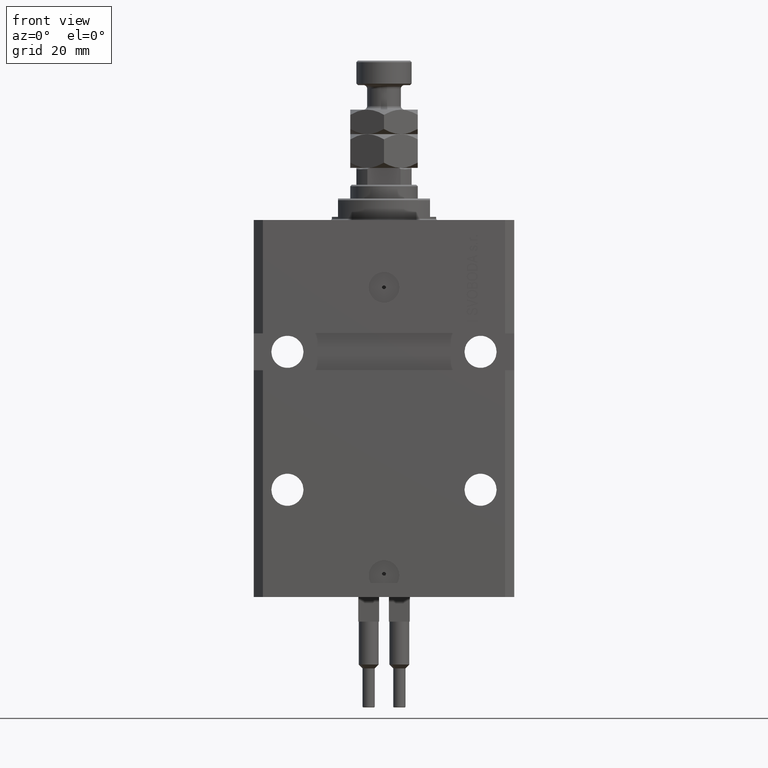
[diagram: clean part render]
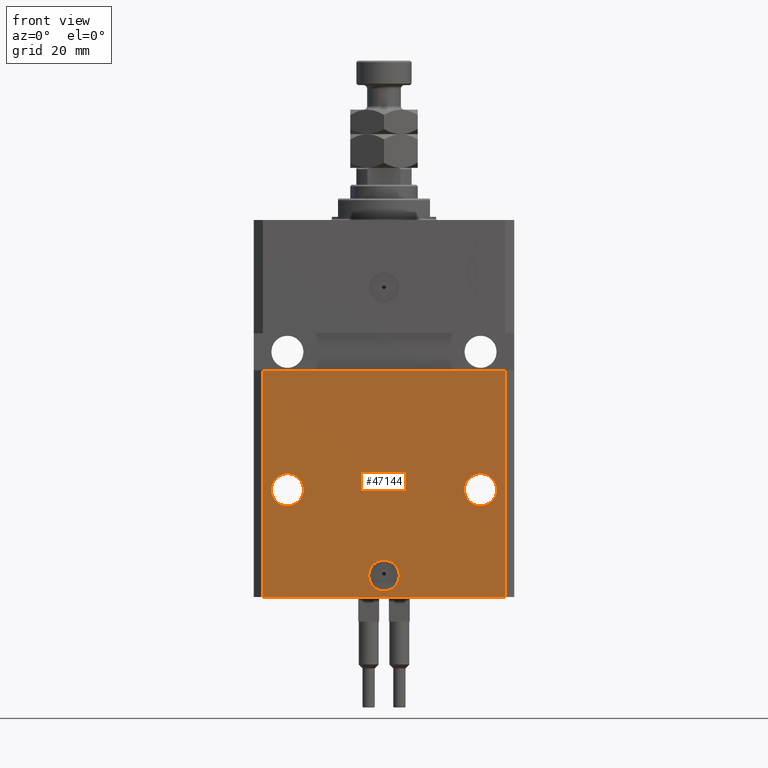
[diagram: same view with one face highlighted and labeled with its STEP entity id]
A machine part, front view. The second image highlights one B-rep face of the part: STEP entity #47144.
In plain terms, the highlighted planar face has unit normal (0, -1, 0).
Its self-contained STEP definition (entity closure, byte-faithful):
#390 = LINE ( 'NONE', #47721, #33252 ) ;
#620 = DIRECTION ( 'NONE',  ( 1.000000000000000000, 0.000000000000000000, 0.000000000000000000 ) ) ;
#1607 = CARTESIAN_POINT ( 'NONE',  ( -39.50000000000000711, -31.50000000000000000, -123.0000000000000000 ) ) ;
#1920 = VECTOR ( 'NONE', #33046, 1000.000000000000000 ) ;
#2313 = ORIENTED_EDGE ( 'NONE', *, *, #29631, .F. ) ;
#3629 = DIRECTION ( 'NONE',  ( 1.176083712526788232E-16, -1.000000000000000000, 0.000000000000000000 ) ) ;
#3948 = ORIENTED_EDGE ( 'NONE', *, *, #42317, .T. ) ;
#4728 = DIRECTION ( 'NONE',  ( -1.000000000000000000, 0.000000000000000000, 0.000000000000000000 ) ) ;
#5125 = VERTEX_POINT ( 'NONE', #42301 ) ;
#5168 = EDGE_CURVE ( 'NONE', #19353, #5125, #26434, .T. ) ;
#5483 = DIRECTION ( 'NONE',  ( 1.000000000000000000, 0.000000000000000000, 0.000000000000000000 ) ) ;
#5671 = ORIENTED_EDGE ( 'NONE', *, *, #13644, .F. ) ;
#6371 = EDGE_LOOP ( 'NONE', ( #5671, #28522, #12662, #3948 ) ) ;
#6441 = CARTESIAN_POINT ( 'NONE',  ( -31.50000000000001421, -31.50000000000000711, -88.00000000000000000 ) ) ;
#6542 = CARTESIAN_POINT ( 'NONE',  ( 36.75000000000001421, -31.49999999999999289, -88.00000000000000000 ) ) ;
#8560 = VERTEX_POINT ( 'NONE', #6542 ) ;
#8660 = VERTEX_POINT ( 'NONE', #23578 ) ;
#9717 = EDGE_CURVE ( 'NONE', #50036, #24122, #16714, .T. ) ;
#10388 = CARTESIAN_POINT ( 'NONE',  ( -39.50000000000000711, -31.50000000000000000, -123.0000000000000000 ) ) ;
#10915 = AXIS2_PLACEMENT_3D ( 'NONE', #20517, #29046, #4728 ) ;
#10945 = PLANE ( 'NONE',  #35225 ) ;
#11002 = CARTESIAN_POINT ( 'NONE',  ( 0.000000000000000000, -31.50000000000000000, -115.9999999999999858 ) ) ;
#11194 = FACE_BOUND ( 'NONE', #24996, .T. ) ;
#11375 = CARTESIAN_POINT ( 'NONE',  ( 31.50000000000001421, -31.49999999999999289, -88.00000000000000000 ) ) ;
#11450 = DIRECTION ( 'NONE',  ( 0.000000000000000000, -1.000000000000000000, 0.000000000000000000 ) ) ;
#11594 = EDGE_CURVE ( 'NONE', #37841, #8560, #50622, .T. ) ;
#11927 = DIRECTION ( 'NONE',  ( 1.000000000000000000, 0.000000000000000000, 0.000000000000000000 ) ) ;
#12616 = LINE ( 'NONE', #40814, #1920 ) ;
#12662 = ORIENTED_EDGE ( 'NONE', *, *, #40896, .T. ) ;
#13265 = DIRECTION ( 'NONE',  ( 1.000000000000000000, 0.000000000000000000, 0.000000000000000000 ) ) ;
#13644 = EDGE_CURVE ( 'NONE', #19338, #14607, #390, .T. ) ;
#14117 = ORIENTED_EDGE ( 'NONE', *, *, #9717, .F. ) ;
#14607 = VERTEX_POINT ( 'NONE', #16699 ) ;
#15428 = EDGE_CURVE ( 'NONE', #24122, #50036, #19787, .T. ) ;
#15638 = DIRECTION ( 'NONE',  ( 1.176083712526788232E-16, -1.000000000000000000, 0.000000000000000000 ) ) ;
#16499 = CARTESIAN_POINT ( 'NONE',  ( 39.50000000000000711, -31.50000000000000000, -123.0000000000000000 ) ) ;
#16699 = CARTESIAN_POINT ( 'NONE',  ( 39.50000000000001421, -31.49999999999999289, -48.99999999999997868 ) ) ;
#16714 = CIRCLE ( 'NONE', #10915, 5.249999999999997335 ) ;
#17148 = CARTESIAN_POINT ( 'NONE',  ( 31.50000000000001421, -31.49999999999999289, -88.00000000000000000 ) ) ;
#19160 = CARTESIAN_POINT ( 'NONE',  ( -39.50000000000000000, -31.50000000000000711, -48.99999999999999289 ) ) ;
#19338 = VERTEX_POINT ( 'NONE', #19160 ) ;
#19353 = VERTEX_POINT ( 'NONE', #34418 ) ;
#19380 = CIRCLE ( 'NONE', #46625, 5.000000000000006217 ) ;
#19787 = CIRCLE ( 'NONE', #33819, 5.249999999999997335 ) ;
#20122 = LINE ( 'NONE', #16499, #31021 ) ;
#20517 = CARTESIAN_POINT ( 'NONE',  ( -31.50000000000001421, -31.50000000000000711, -88.00000000000000000 ) ) ;
#22141 = ORIENTED_EDGE ( 'NONE', *, *, #50094, .F. ) ;
#22237 = DIRECTION ( 'NONE',  ( 1.176083712526788232E-16, -1.000000000000000000, 0.000000000000000000 ) ) ;
#22760 = VECTOR ( 'NONE', #5483, 1000.000000000000000 ) ;
#22820 = EDGE_LOOP ( 'NONE', ( #22141, #46640 ) ) ;
#22928 = EDGE_LOOP ( 'NONE', ( #50616, #2313 ) ) ;
#23578 = CARTESIAN_POINT ( 'NONE',  ( 39.50000000000000711, -31.50000000000000000, -123.0000000000000000 ) ) ;
#24122 = VERTEX_POINT ( 'NONE', #25560 ) ;
#24996 = EDGE_LOOP ( 'NONE', ( #28252, #14117 ) ) ;
#25456 = AXIS2_PLACEMENT_3D ( 'NONE', #11375, #3629, #43695 ) ;
#25560 = CARTESIAN_POINT ( 'NONE',  ( -26.25000000000001776, -31.50000000000000711, -88.00000000000000000 ) ) ;
#26434 = CIRCLE ( 'NONE', #35499, 5.000000000000006217 ) ;
#26532 = EDGE_CURVE ( 'NONE', #41041, #19338, #12616, .T. ) ;
#26723 = DIRECTION ( 'NONE',  ( 0.000000000000000000, -0.000000000000000000, -1.000000000000000000 ) ) ;
#27407 = CARTESIAN_POINT ( 'NONE',  ( -36.75000000000001421, -31.50000000000000711, -88.00000000000000000 ) ) ;
#28072 = DIRECTION ( 'NONE',  ( 1.000000000000000000, 1.632680918566406300E-16, 1.632680918566406300E-16 ) ) ;
#28252 = ORIENTED_EDGE ( 'NONE', *, *, #15428, .F. ) ;
#28522 = ORIENTED_EDGE ( 'NONE', *, *, #26532, .F. ) ;
#29046 = DIRECTION ( 'NONE',  ( 1.176083712526788232E-16, -1.000000000000000000, 0.000000000000000000 ) ) ;
#29631 = EDGE_CURVE ( 'NONE', #5125, #19353, #19380, .T. ) ;
#30345 = FACE_OUTER_BOUND ( 'NONE', #6371, .T. ) ;
#31021 = VECTOR ( 'NONE', #36917, 1000.000000000000000 ) ;
#31578 = DIRECTION ( 'NONE',  ( 1.176083712526788232E-16, -1.000000000000000000, 0.000000000000000000 ) ) ;
#33046 = DIRECTION ( 'NONE',  ( 0.000000000000000000, 0.000000000000000000, 1.000000000000000000 ) ) ;
#33252 = VECTOR ( 'NONE', #28072, 1000.000000000000000 ) ;
#33334 = AXIS2_PLACEMENT_3D ( 'NONE', #17148, #48687, #13265 ) ;
#33819 = AXIS2_PLACEMENT_3D ( 'NONE', #6441, #22237, #38008 ) ;
#34227 = FACE_BOUND ( 'NONE', #22820, .T. ) ;
#34418 = CARTESIAN_POINT ( 'NONE',  ( 5.000000000000006217, -31.50000000000000000, -115.9999999999999858 ) ) ;
#35225 = AXIS2_PLACEMENT_3D ( 'NONE', #46127, #11450, #26723 ) ;
#35332 = CIRCLE ( 'NONE', #25456, 5.249999999999997335 ) ;
#35499 = AXIS2_PLACEMENT_3D ( 'NONE', #11002, #15638, #620 ) ;
#36917 = DIRECTION ( 'NONE',  ( 0.000000000000000000, 0.000000000000000000, 1.000000000000000000 ) ) ;
#37101 = CARTESIAN_POINT ( 'NONE',  ( 26.25000000000001776, -31.49999999999999289, -88.00000000000000000 ) ) ;
#37299 = LINE ( 'NONE', #1607, #22760 ) ;
#37841 = VERTEX_POINT ( 'NONE', #37101 ) ;
#38008 = DIRECTION ( 'NONE',  ( -1.000000000000000000, 0.000000000000000000, 0.000000000000000000 ) ) ;
#40814 = CARTESIAN_POINT ( 'NONE',  ( -39.50000000000000711, -31.50000000000000000, -123.0000000000000000 ) ) ;
#40896 = EDGE_CURVE ( 'NONE', #41041, #8660, #37299, .T. ) ;
#41041 = VERTEX_POINT ( 'NONE', #10388 ) ;
#42301 = CARTESIAN_POINT ( 'NONE',  ( -5.000000000000006217, -31.50000000000000000, -115.9999999999999858 ) ) ;
#42317 = EDGE_CURVE ( 'NONE', #8660, #14607, #20122, .T. ) ;
#43695 = DIRECTION ( 'NONE',  ( 1.000000000000000000, 0.000000000000000000, 0.000000000000000000 ) ) ;
#46127 = CARTESIAN_POINT ( 'NONE',  ( -39.50000000000000711, -31.50000000000000000, -123.0000000000000000 ) ) ;
#46382 = FACE_BOUND ( 'NONE', #22928, .T. ) ;
#46625 = AXIS2_PLACEMENT_3D ( 'NONE', #47109, #31578, #11927 ) ;
#46640 = ORIENTED_EDGE ( 'NONE', *, *, #11594, .F. ) ;
#47109 = CARTESIAN_POINT ( 'NONE',  ( 0.000000000000000000, -31.50000000000000000, -115.9999999999999858 ) ) ;
#47144 = ADVANCED_FACE ( 'NONE', ( #46382, #34227, #11194, #30345 ), #10945, .T. ) ;
#47721 = CARTESIAN_POINT ( 'NONE',  ( -42.50000000000000000, -31.50000000000000711, -48.99999999999999289 ) ) ;
#48687 = DIRECTION ( 'NONE',  ( 1.176083712526788232E-16, -1.000000000000000000, 0.000000000000000000 ) ) ;
#50036 = VERTEX_POINT ( 'NONE', #27407 ) ;
#50094 = EDGE_CURVE ( 'NONE', #8560, #37841, #35332, .T. ) ;
#50616 = ORIENTED_EDGE ( 'NONE', *, *, #5168, .F. ) ;
#50622 = CIRCLE ( 'NONE', #33334, 5.249999999999997335 ) ;